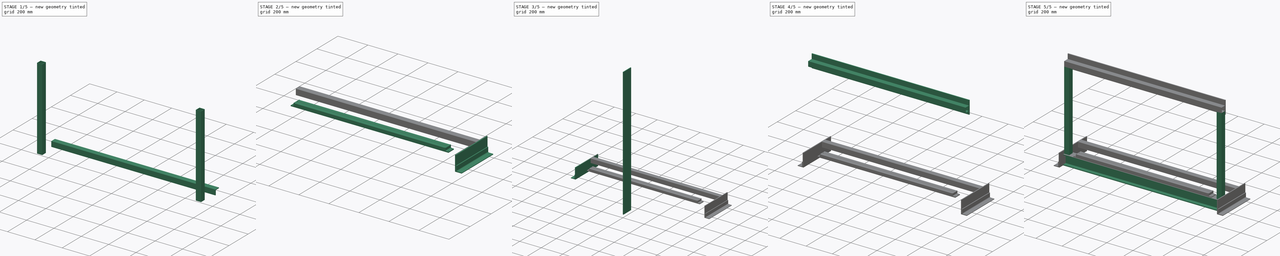
[diagram: build sequence overview — one tinted view per stage of 5, left to right]
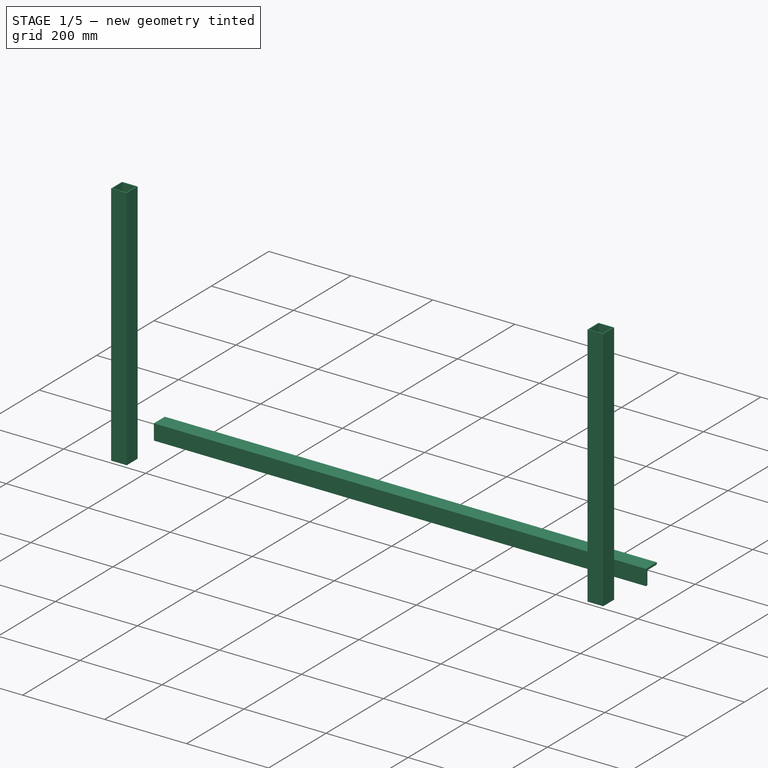
[diagram: stage 1 of 5 — iso view after this stage's code; geometry added in this stage tinted green]
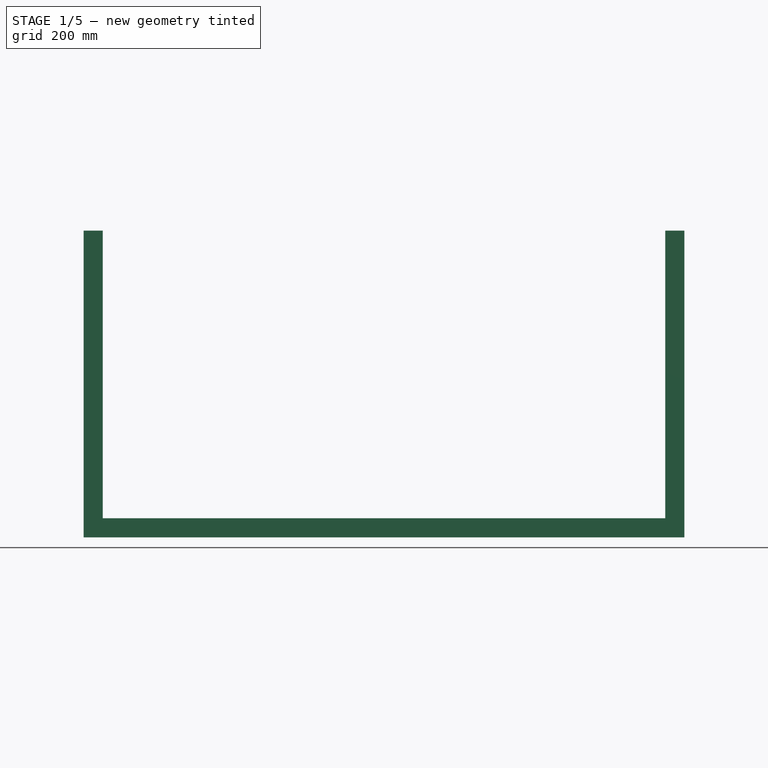
[diagram: stage 1 of 5 — front view after this stage's code; geometry added in this stage tinted green]
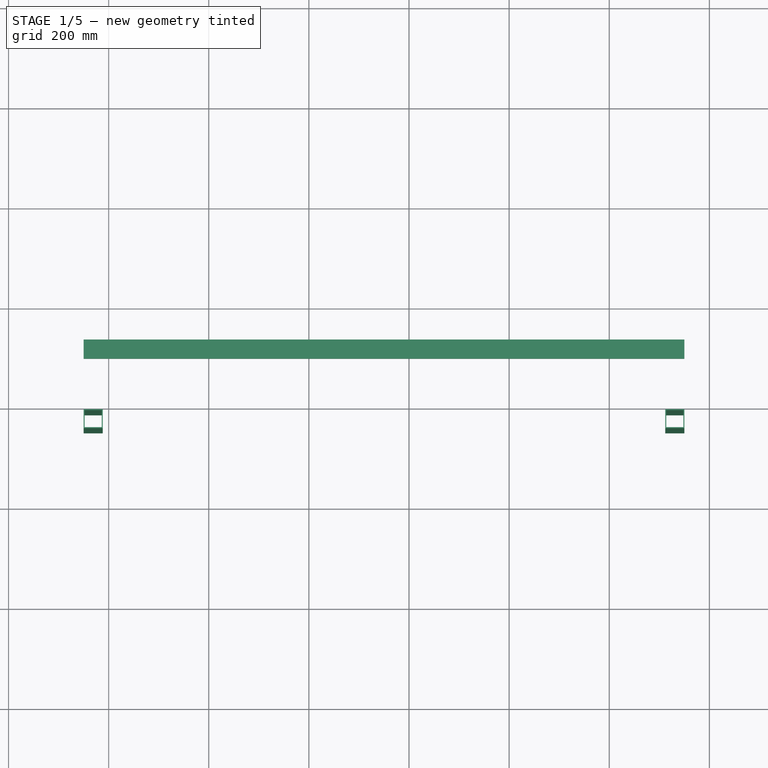
[diagram: stage 1 of 5 — top view after this stage's code; geometry added in this stage tinted green]
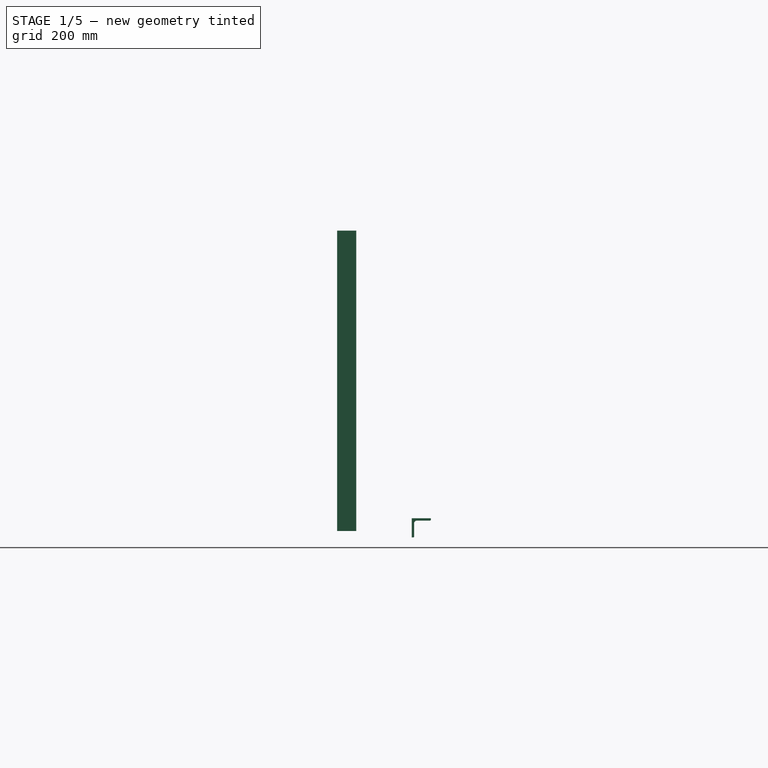
[diagram: stage 1 of 5 — right view after this stage's code; geometry added in this stage tinted green]
FCSTD DOCUMENT  (FreeCAD 0.18.4R)
Label: BASE_Dobladora
License: All rights reserved
LicenseURL: http://en.wikipedia.org/wiki/All_rights_reserved
objects: Part::Cut×6, Part::Fuse×4, Sketcher::SketchObject×3, Part::Extrusion×3, Part::MultiFuse×3, Part::Fillet×1
note: 20 computed .brp shape members not serialized (recipe doc carries the construction recipe); baked Part::Feature solids carry a one-line shape summary decoded from their .brp

FEATURE [Part::Cut] Cut004  label="PTC1ymedia_121cmDER"
  Placement = pos=(511.9,351,81.2) rot=(0,0,1;0rad)
FEATURE [Part::Cut] Cut005  label="Ptc1ymedia_121cmIZQ"
  Placement = pos=(-650,351,81.22) rot=(0,0,1;0rad)
FEATURE [Part::Cut] Cut007  label="anguloTrasero001"
  Placement = pos=(-650,500,106.6) rot=(0,0,1;0rad)
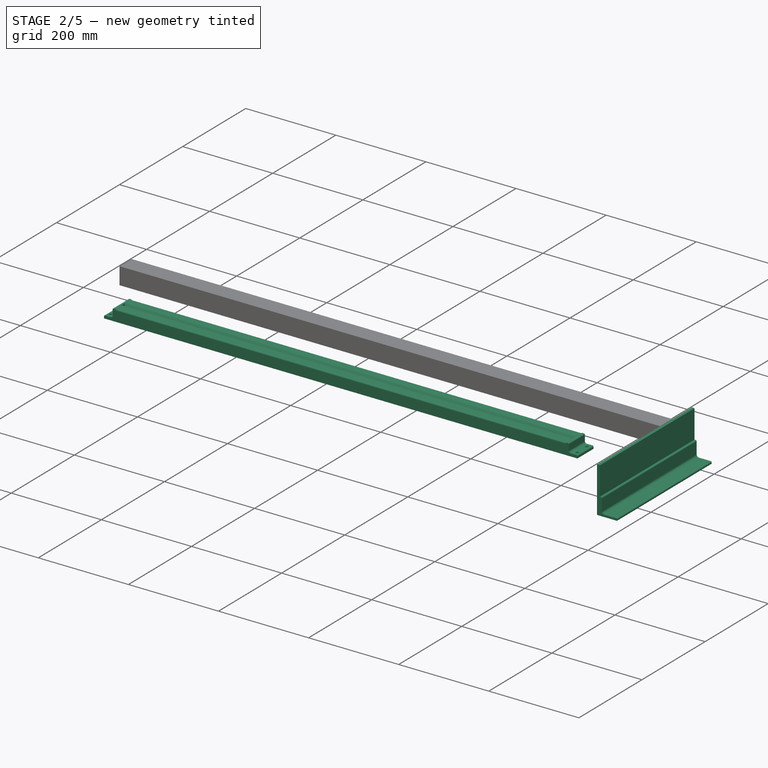
[diagram: stage 2 of 5 — iso view after this stage's code; geometry added in this stage tinted green]
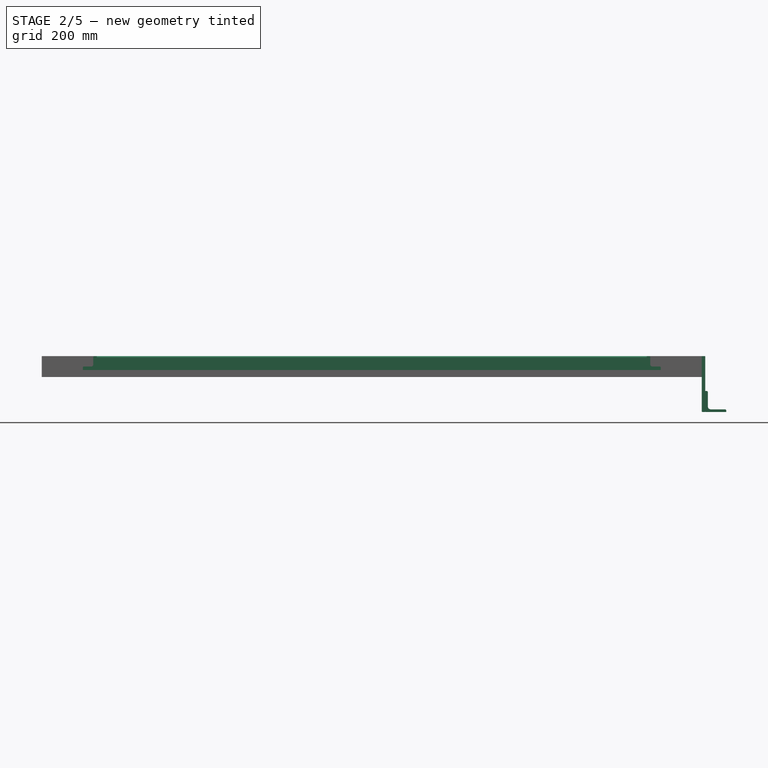
[diagram: stage 2 of 5 — front view after this stage's code; geometry added in this stage tinted green]
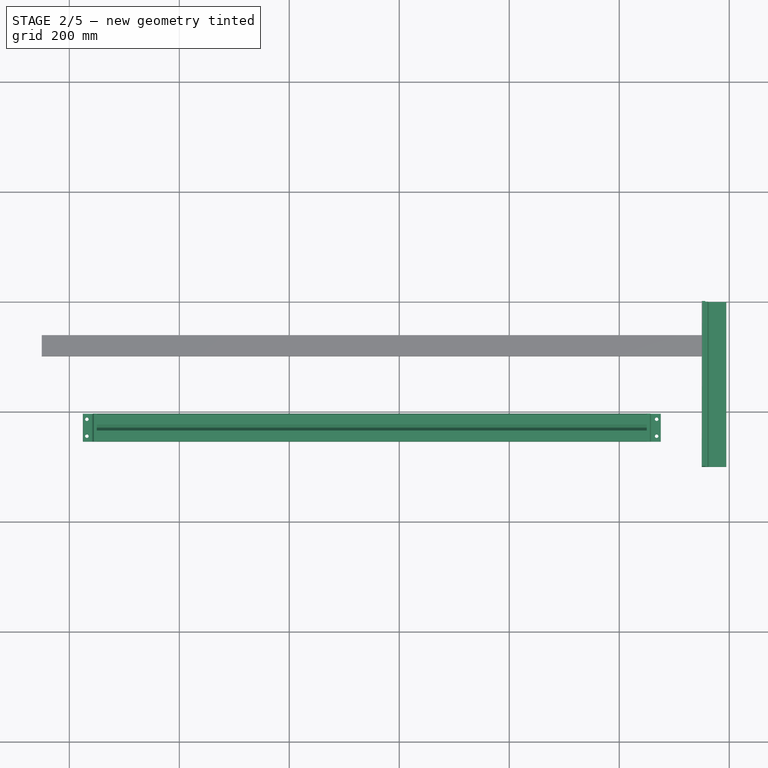
[diagram: stage 2 of 5 — top view after this stage's code; geometry added in this stage tinted green]
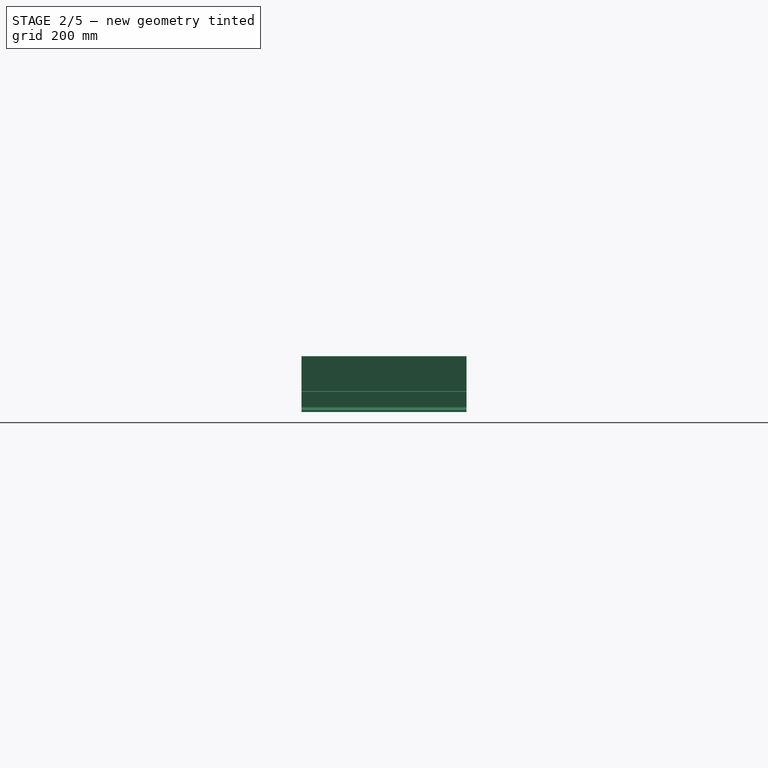
[diagram: stage 2 of 5 — right view after this stage's code; geometry added in this stage tinted green]
FEATURE [Part::Fuse] Fusion001  label="anclaDer_30cm"
  Placement = pos=(-100,0,0) rot=(0,0,1;0rad)
FEATURE [Part::Cut] Cut002  label="anguloTrasero"
  Placement = pos=(-650,500,106.6) rot=(0,0,1;0rad)
FEATURE [Part::Fuse] Fusion002
  Base = -> Cut004
  Tool = -> Cut005
FEATURE [Part::MultiFuse] Fusion006  label="dadoMacizo"
  Placement = pos=(-550,370,81.2) rot=(0,0,1;0rad)
  Shapes = -> [Fusion002,Cut002]
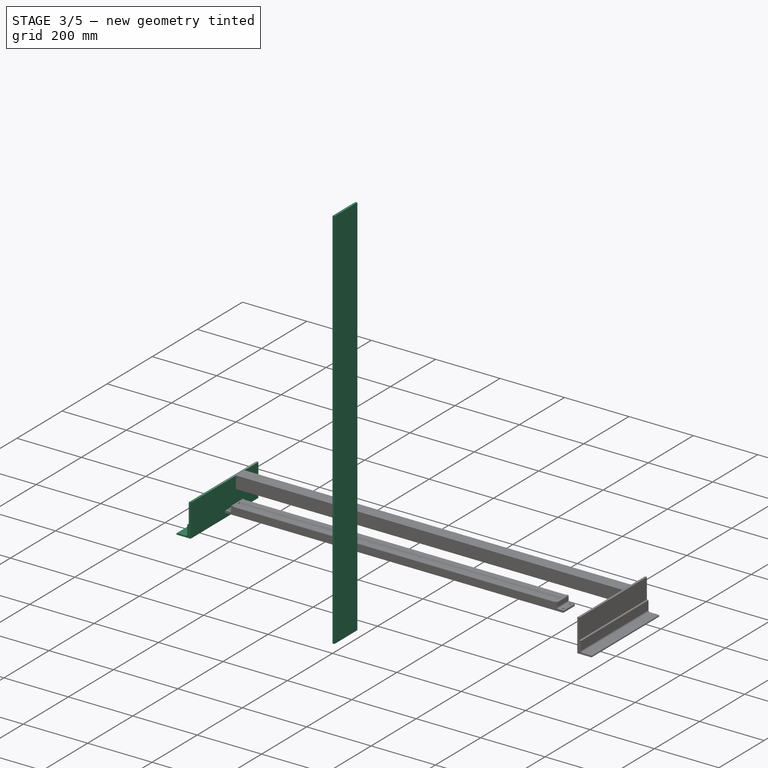
[diagram: stage 3 of 5 — iso view after this stage's code; geometry added in this stage tinted green]
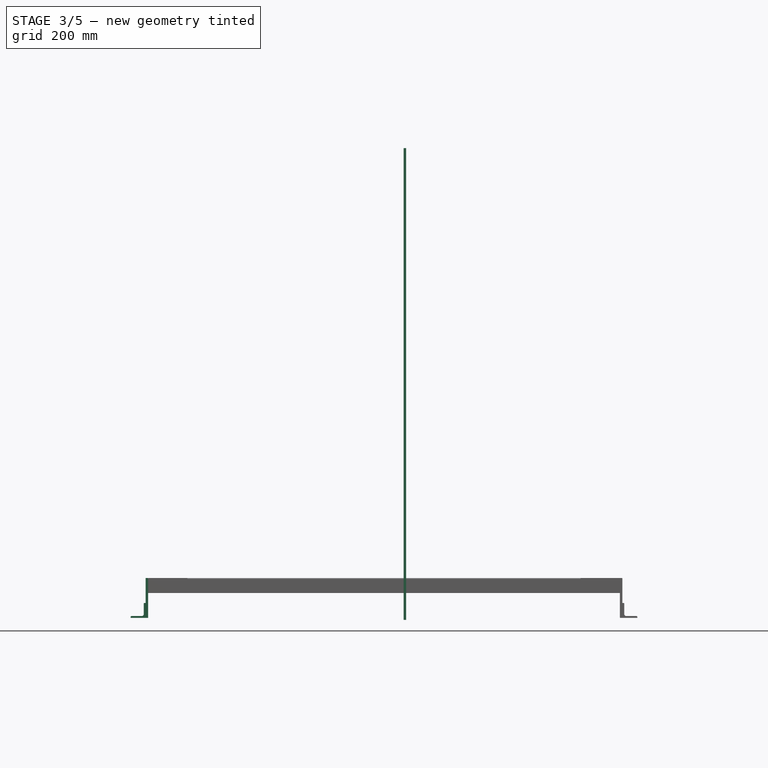
[diagram: stage 3 of 5 — front view after this stage's code; geometry added in this stage tinted green]
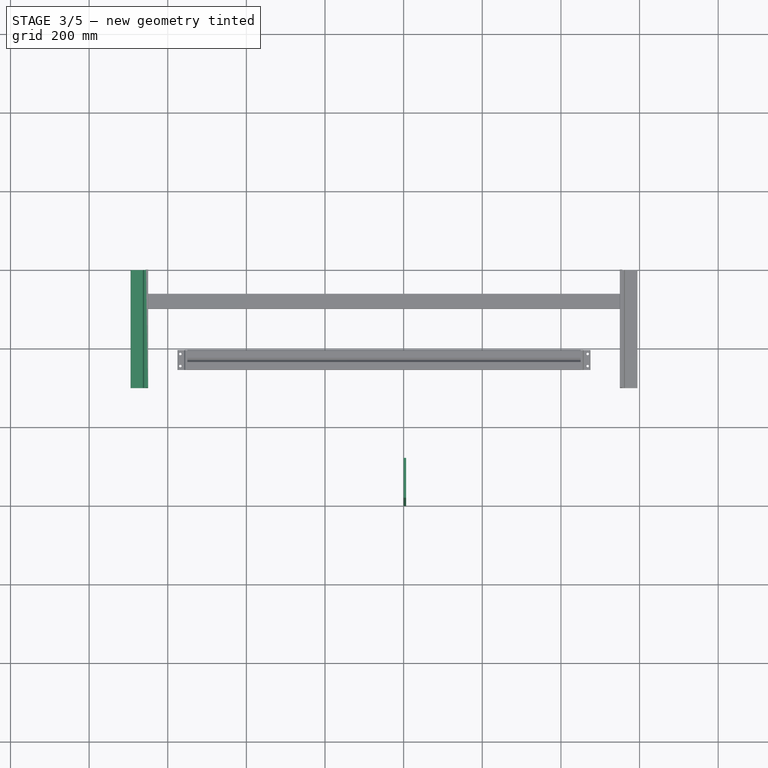
[diagram: stage 3 of 5 — top view after this stage's code; geometry added in this stage tinted green]
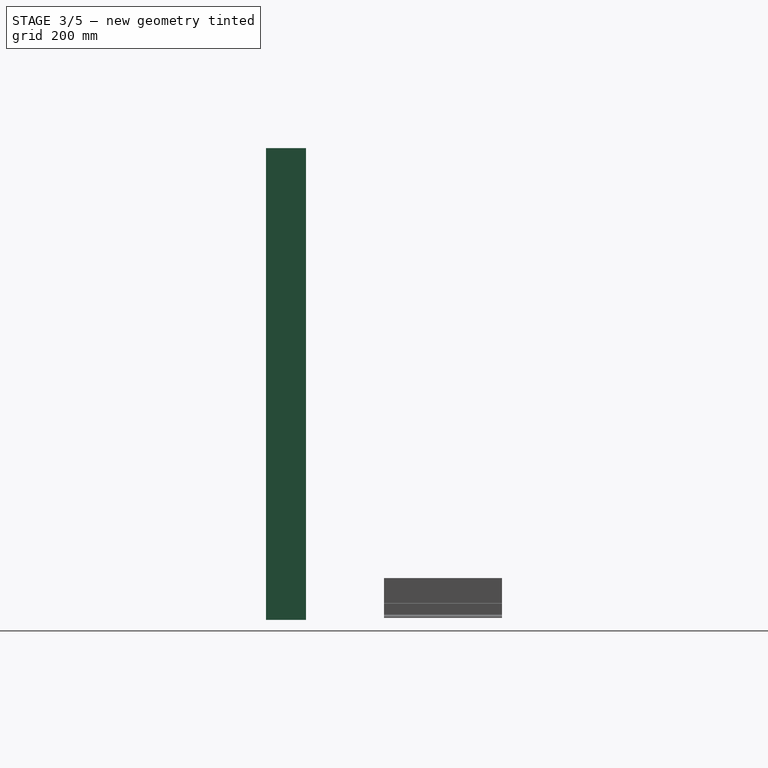
[diagram: stage 3 of 5 — right view after this stage's code; geometry added in this stage tinted green]
FEATURE [Part::Fuse] Fusion  label="anclaIzq_30cm"
  Placement = pos=(-6.35,0,0) rot=(0,0,1;0rad)
FEATURE [Sketcher::SketchObject] Sketch  label="solera_4x1cuartoCROQUIS"
  sketch-geometry (4):
    g0: LineSegment StartX=0 StartY=101.6 StartZ=0 EndX=6.35 EndY=101.6 EndZ=0
    g1: LineSegment StartX=6.35 StartY=101.6 StartZ=0 EndX=6.35 EndY=0 EndZ=0
    g2: LineSegment StartX=6.35 StartY=0 StartZ=0 EndX=0 EndY=0 EndZ=0
    g3: LineSegment StartX=0 StartY=0 StartZ=0 EndX=0 EndY=101.6 EndZ=0
  constraints (11):
    c: Coincident(g0,g1)
    c: Coincident(g1,g2)
    c: Coincident(g2,g3)
    c: Coincident(g3,g0)
    c: Horizontal(g0)
    c: Horizontal(g2)
    c: Vertical(g1)
    c: Vertical(g3)
    c: DistanceY(g1,g1) = 101.6
    c: DistanceX(g2,g1) = 6.35
    c: Coincident(g2,g-1)
FEATURE [Part::Extrusion] Extrude
  Base = -> Sketch
  Dir = (0,0,1)
  DirMode = 2
  FaceMakerClass = Part::FaceMakerBullseye
  LengthFwd = 1200
  LengthRev = 0
  Solid = true
  Symmetric = false
FEATURE [Part::MultiFuse] Fusion005  label="Anclas"
  Shapes = -> [Fusion,Fusion001]
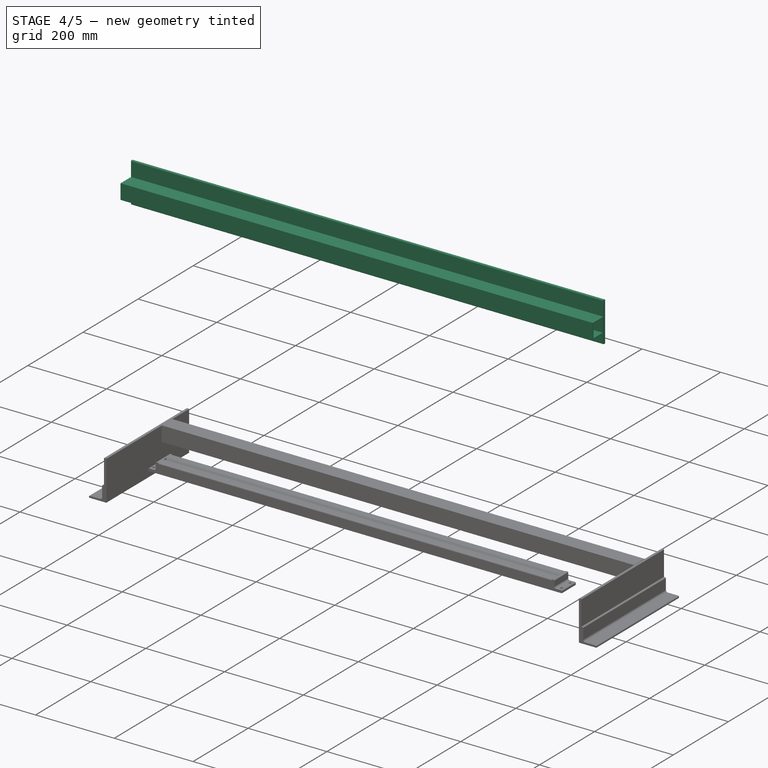
[diagram: stage 4 of 5 — iso view after this stage's code; geometry added in this stage tinted green]
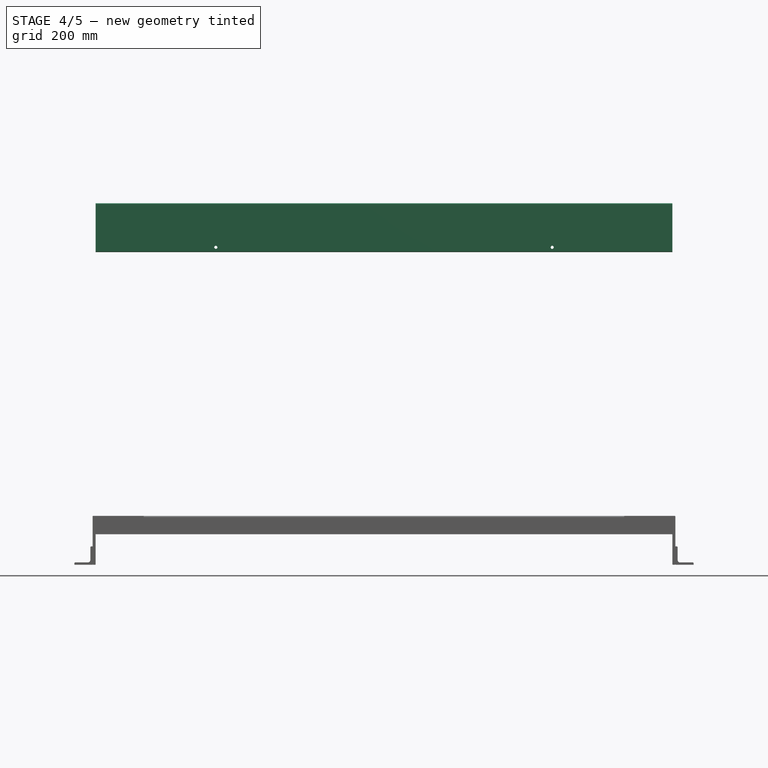
[diagram: stage 4 of 5 — front view after this stage's code; geometry added in this stage tinted green]
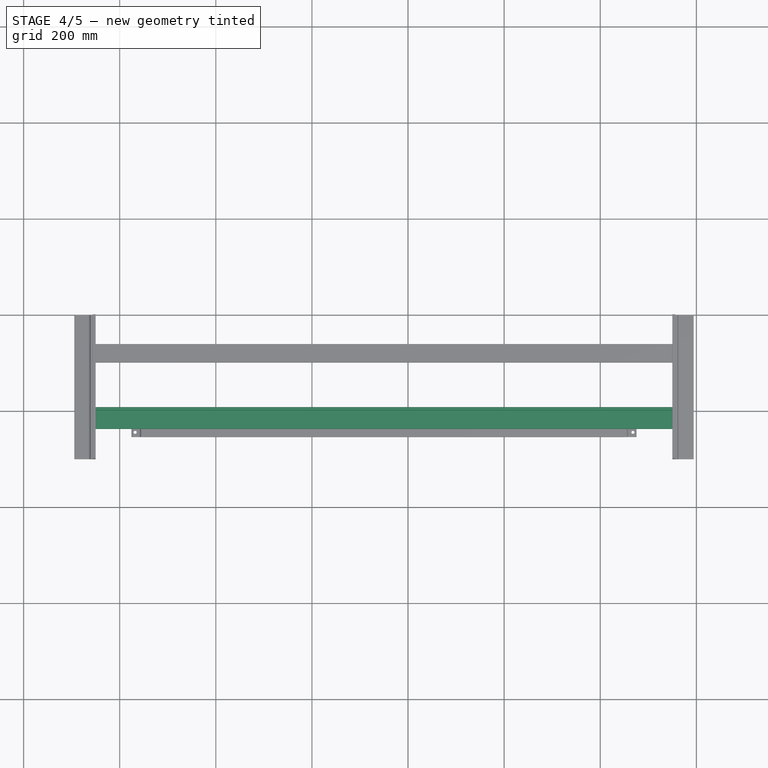
[diagram: stage 4 of 5 — top view after this stage's code; geometry added in this stage tinted green]
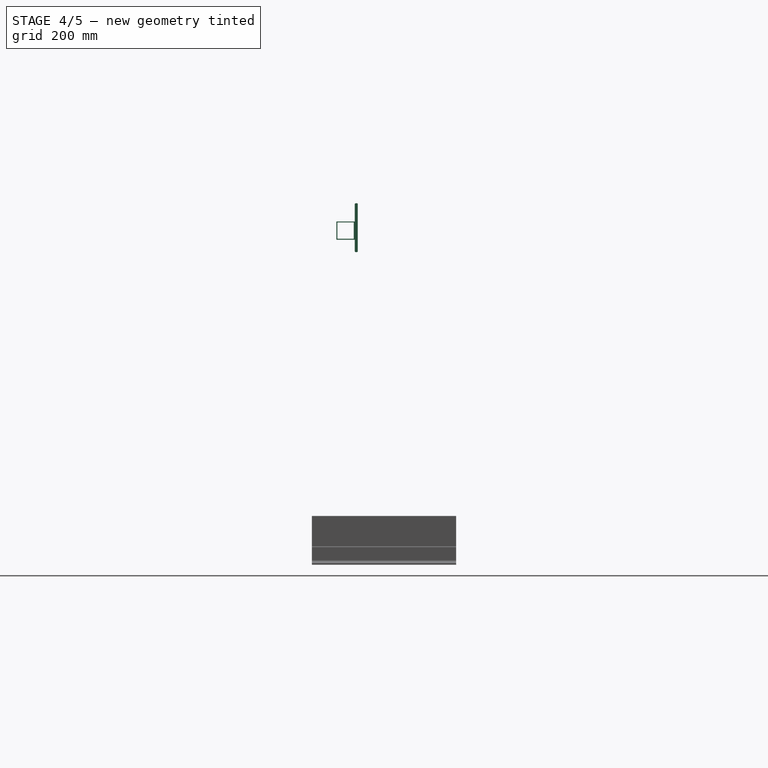
[diagram: stage 4 of 5 — right view after this stage's code; geometry added in this stage tinted green]
FEATURE [Part::Cut] Cut006  label="PTCtransversal"
  Placement = pos=(-650,351,719.3) rot=(0,1,0;1.5708rad)
FEATURE [Part::Fillet] Fillet  label="solera_4x1cuartoEXTRUD"
  Base = -> Extrude
  Edges = 4 edges r=2: [Edge1,Edge2,Edge5,Edge8]
  Placement = pos=(-650,389.1,617.4) rot=(0.57735,0.57735,0.57735;2.0944rad)
FEATURE [Sketcher::SketchObject] Sketch004
  MapMode = 5
  Placement = pos=(-650,389.1,617.4) rot=(0.57735,0.57735,-0.57735;2.0944rad)
  Support = -> [Fillet]
  sketch-geometry (2):
    g0: Circle CenterX=-10 CenterY=250 CenterZ=0 NormalX=0 NormalY=0 NormalZ=1 AngleXU=0 Radius=3.175
    g1: Circle CenterX=-10 CenterY=950 CenterZ=0 NormalX=0 NormalY=0 NormalZ=1 AngleXU=0 Radius=3.175
  constraints (6):
    c: Radius(g0) = 3.175
    c: DistanceX(g0,g-1) = 10
    c: DistanceY(g-1,g0) = 250
    c: DistanceX(g0,g1) = 0
    c: DistanceY(g0,g1) = 700
    c: Radius(g1) = 3.175
FEATURE [Part::Extrusion] Extrude003
  Base = -> Sketch004
  Dir = (0,-1,0)
  DirMode = 2
  FaceMakerClass = Part::FaceMakerBullseye
  LengthFwd = 6.36
  LengthRev = 0
  Reversed = true
  Solid = true
  Symmetric = false
FEATURE [Part::Cut] Cut  label="SoleraConhoyos"
  Base = -> Fillet
  Placement = pos=(0,0,38.1) rot=(0,0,1;0rad)
  Tool = -> Extrude003
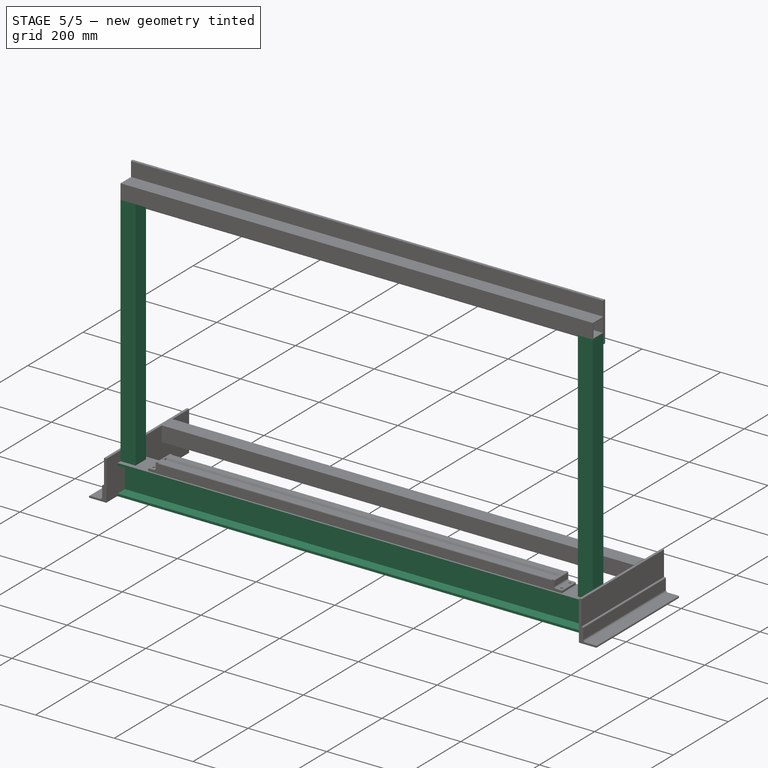
[diagram: stage 5 of 5 — iso view after this stage's code; geometry added in this stage tinted green]
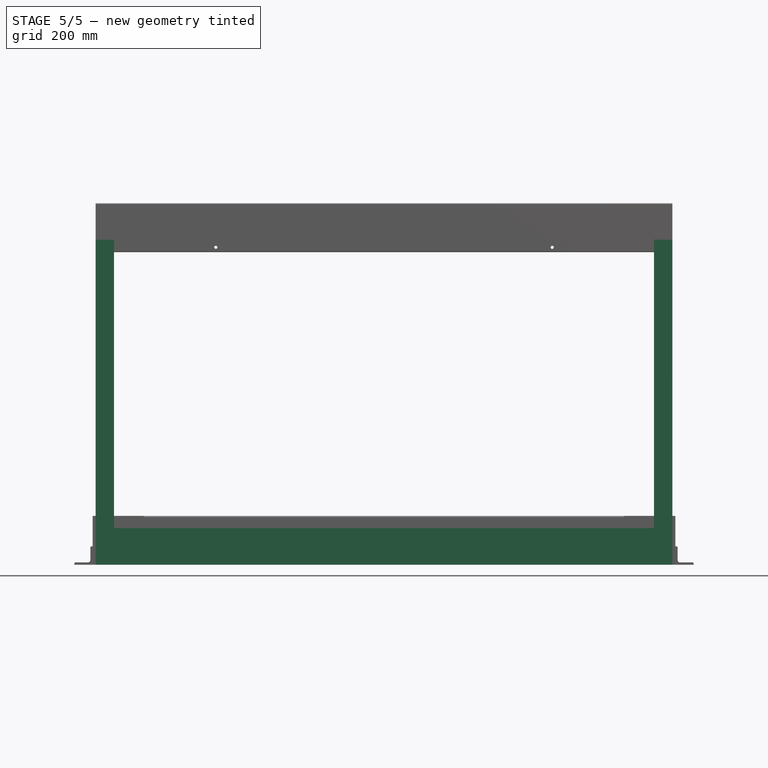
[diagram: stage 5 of 5 — front view after this stage's code; geometry added in this stage tinted green]
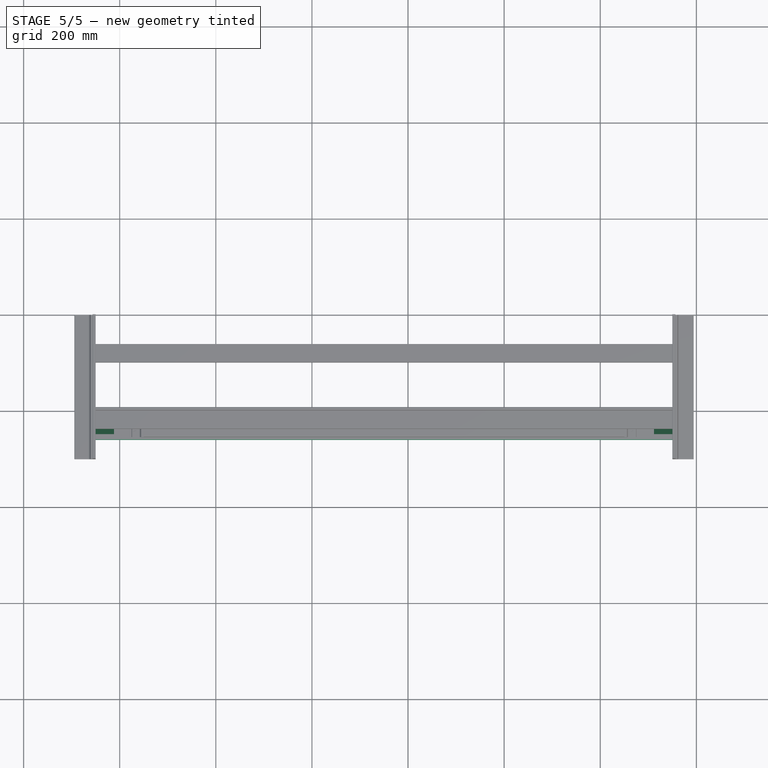
[diagram: stage 5 of 5 — top view after this stage's code; geometry added in this stage tinted green]
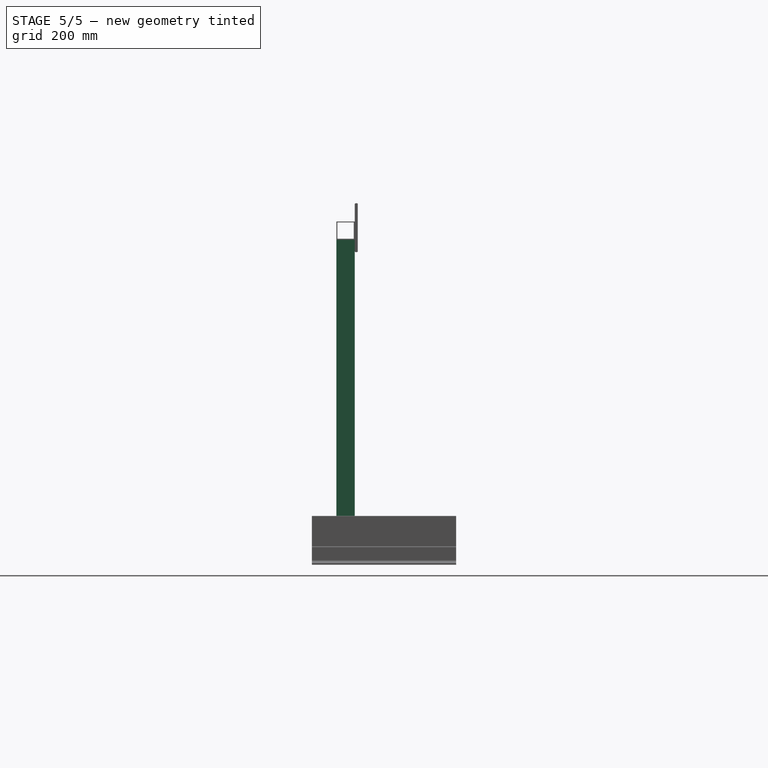
[diagram: stage 5 of 5 — right view after this stage's code; geometry added in this stage tinted green]
FEATURE [Sketcher::SketchObject] Sketch003
  Placement = pos=(0,-76.2,-650) rot=(0,0,1;0rad)
  sketch-geometry (12):
    g0: LineSegment StartX=0 StartY=76.2 StartZ=0 EndX=0 EndY=70.2 EndZ=0
    g1: LineSegment StartX=0 StartY=70.2 StartZ=0 EndX=27 EndY=70.2 EndZ=0
    g2: LineSegment StartX=27 StartY=70.2 StartZ=0 EndX=27 EndY=6 EndZ=0
    g3: LineSegment StartX=27 StartY=6 StartZ=0 EndX=0 EndY=6 EndZ=0
    g4: LineSegment StartX=0 StartY=6 StartZ=0 EndX=0 EndY=0 EndZ=0
    g5: LineSegment StartX=0 StartY=0 StartZ=0 EndX=60 EndY=0 EndZ=0
    g6: LineSegment StartX=60 StartY=0 StartZ=0 EndX=60 EndY=6 EndZ=0
    g7: LineSegment StartX=60 StartY=6 StartZ=0 EndX=33 EndY=6 EndZ=0
    g8: LineSegment StartX=33 StartY=6 StartZ=0 EndX=33 EndY=70.2 EndZ=0
    g9: LineSegment StartX=33 StartY=70.2 StartZ=0 EndX=60 EndY=70.2 EndZ=0
    g10: LineSegment StartX=60 StartY=70.2 StartZ=0 EndX=60 EndY=76.2 EndZ=0
    g11: LineSegment StartX=60 StartY=76.2 StartZ=0 EndX=0 EndY=76.2 EndZ=0
  constraints (35):
    c: Vertical(g0)
    c: Coincident(g0,g1)
    c: Coincident(g1,g2)
    c: Vertical(g2)
    c: Coincident(g2,g3)
    c: Coincident(g3,g4)
    c: Vertical(g4)
    c: Coincident(g4,g5)
    c: Horizontal(g5)
    c: Coincident(g5,g6)
    c: Vertical(g6)
    c: Coincident(g6,g7)
    c: Coincident(g7,g8)
    c: Coincident(g8,g9)
    c: Coincident(g9,g10)
    c: Coincident(g10,g11)
    c: Coincident(g11,g0)
    c: DistanceX(g11,g11) = 60
    c: DistanceY(g4,g0) = 76.2
    c: Horizontal(g11)
    c: Horizontal(g9)
    c: Horizontal(g1)
    c: Horizontal(g3)
    c: Vertical(g10)
    c: Equal(g11,g5)
    c: Equal(g0,g4)
    c: Equal(g10,g0)
    c: Equal(g0,g6)
    c: Equal(g8,g2)
    c: DistanceY(g0,g0) = 6
    c: Equal(g1,g9)
    c: Equal(g9,g7)
    c: Equal(g7,g3)
    c: DistanceX(g1,g8) = 6
    c: Coincident(g4,g-1)
FEATURE [Part::Extrusion] Extrude002  label="Viga"
  Base = -> Sketch003
  Dir = (0,0,1)
  DirMode = 2
  FaceMakerClass = Part::FaceMakerBullseye
  LengthFwd = 1200
  LengthRev = 0
  Placement = pos=(0,400,5) rot=(0.57735,-0.57735,0.57735;4.18879rad)
  Solid = true
  Symmetric = false
FEATURE [Part::Fuse] Fusion003
  Base = -> Cut006
  Tool = -> Cut
FEATURE [Part::MultiFuse] Fusion004  label="MarcoSuperior"
  Shapes = -> [Fusion002,Fusion003]
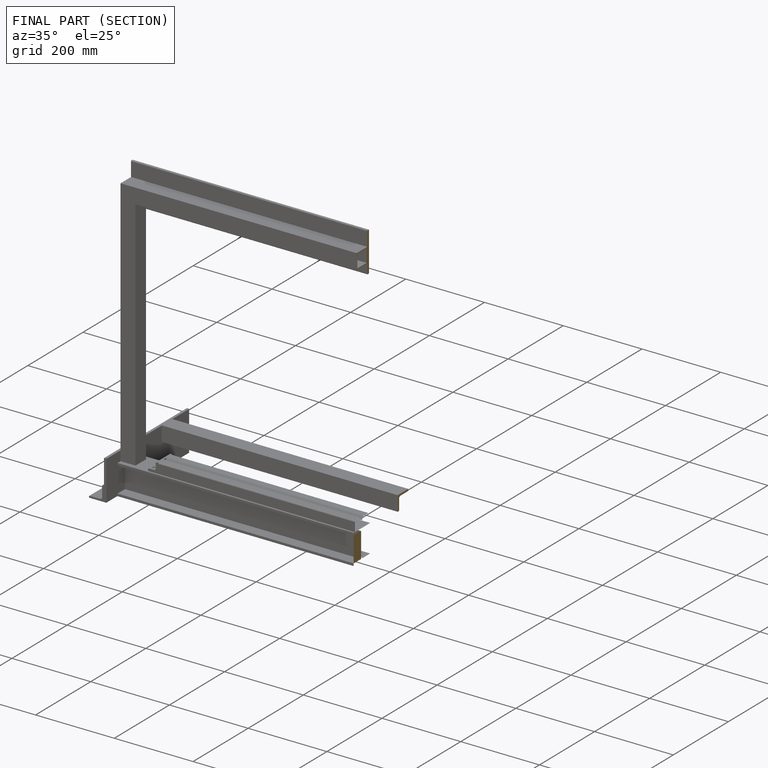
[diagram: finished part — half-section view (interior)]
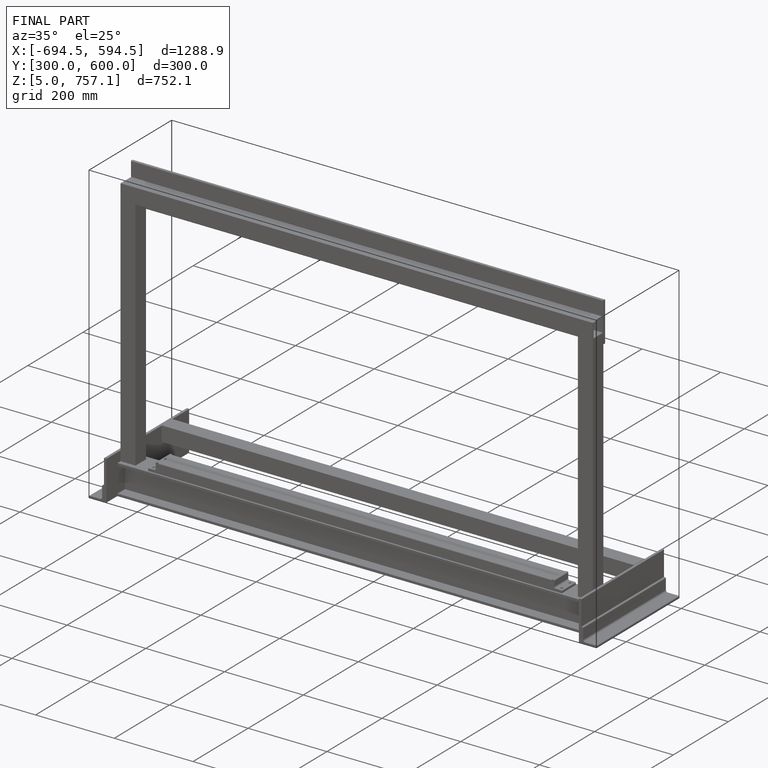
[diagram: finished part — iso view with bounding-box wireframe]
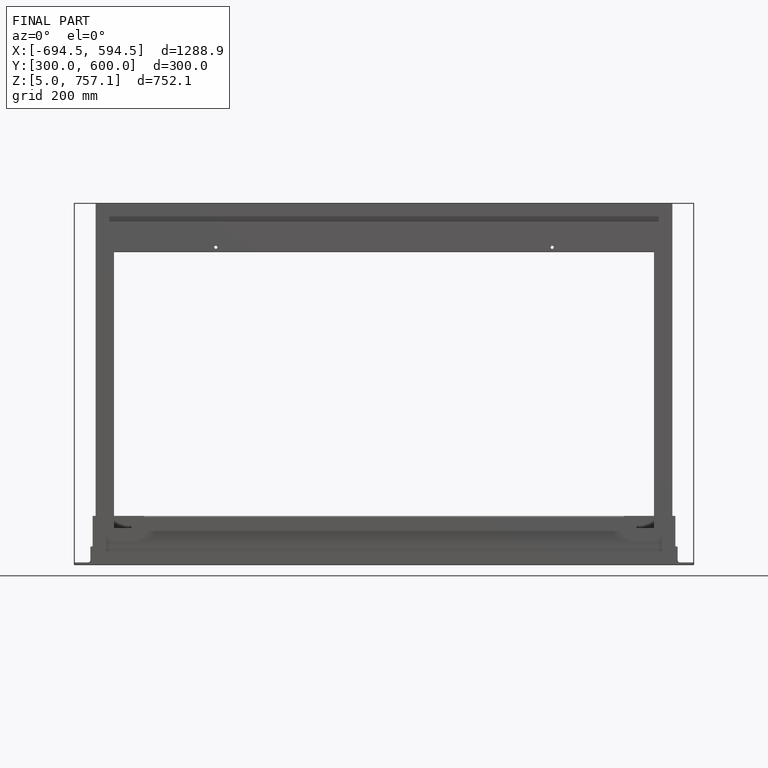
[diagram: finished part — front view with bounding-box wireframe]
